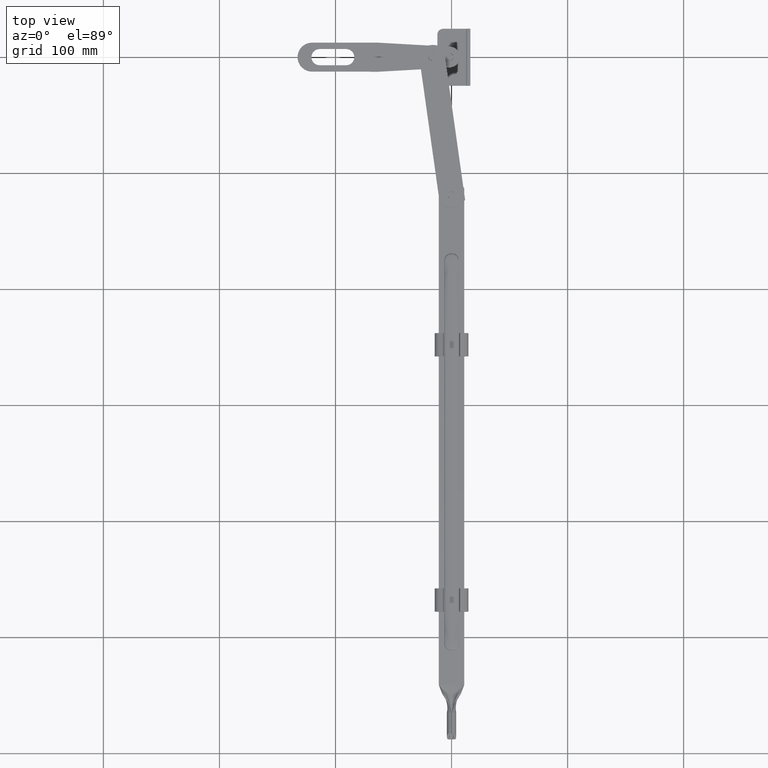
[diagram: clean part render]
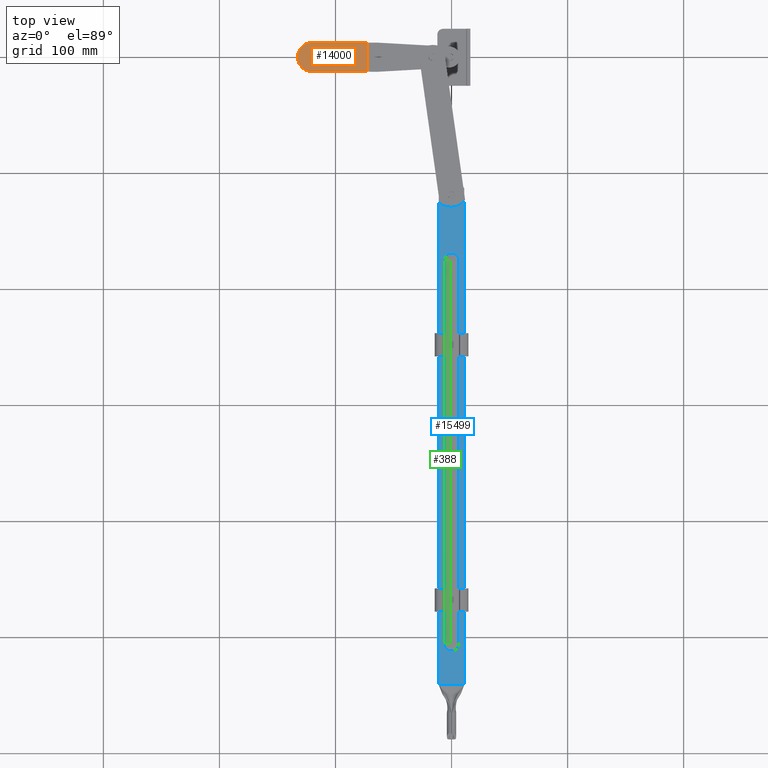
[diagram: same view with three faces highlighted in distinct colors, each labeled with its STEP entity id]
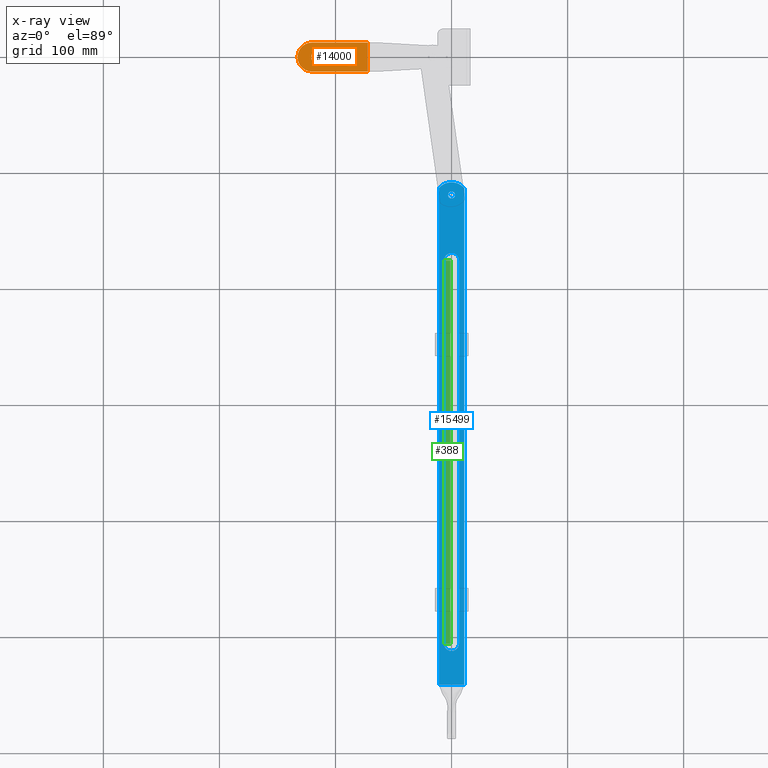
[diagram: x-ray of the same camera — body ghosted, the three highlighted faces saturated]
A machine part, top view with three faces highlighted in distinct colors.
The next image is the same camera in x-ray (body ghosted, the three faces saturated) — at least one of them is partly hidden behind the body in this view.
Their STEP definitions:

[orange] entity #14000 — the highlighted planar face has unit normal (0, -0, -1).
#341 = AXIS2_PLACEMENT_3D ( 'NONE', #13773, #5722, #7228 ) ;
#364 = EDGE_CURVE ( 'NONE', #5129, #12816, #6738, .T. ) ;
#623 = CARTESIAN_POINT ( 'NONE',  ( 0.000000000000000000, -46.00000000000002132, 3.000000000000039080 ) ) ;
#1262 = VECTOR ( 'NONE', #2225, 1000.000000000000000 ) ;
#1793 = EDGE_CURVE ( 'NONE', #6665, #5258, #10393, .T. ) ;
#1829 = CARTESIAN_POINT ( 'NONE',  ( 0.000000000000000000, -52.50000000000001421, 3.000000000000039080 ) ) ;
#1931 = PLANE ( 'NONE',  #341 ) ;
#2004 = AXIS2_PLACEMENT_3D ( 'NONE', #1829, #12192, #14928 ) ;
#2020 = CARTESIAN_POINT ( 'NONE',  ( 6.999999999999999112, -46.00000000000002132, 3.000000000000039080 ) ) ;
#2225 = DIRECTION ( 'NONE',  ( 0.000000000000000000, -1.000000000000000000, 0.000000000000000000 ) ) ;
#2897 = EDGE_CURVE ( 'NONE', #3888, #12816, #9932, .T. ) ;
#2954 = EDGE_CURVE ( 'NONE', #5364, #6775, #14638, .T. ) ;
#3088 = DIRECTION ( 'NONE',  ( 1.000000000000000000, 0.000000000000000000, 0.000000000000000000 ) ) ;
#3140 = DIRECTION ( 'NONE',  ( -0.000000000000000000, 0.000000000000000000, 1.000000000000000000 ) ) ;
#3888 = VERTEX_POINT ( 'NONE', #6821 ) ;
#4095 = DIRECTION ( 'NONE',  ( -0.000000000000000000, 0.000000000000000000, 1.000000000000000000 ) ) ;
#4192 = CARTESIAN_POINT ( 'NONE',  ( 6.999999999999999112, 0.000000000000000000, 3.000000000000039080 ) ) ;
#5129 = VERTEX_POINT ( 'NONE', #15558 ) ;
#5258 = VERTEX_POINT ( 'NONE', #11677 ) ;
#5364 = VERTEX_POINT ( 'NONE', #7881 ) ;
#5722 = DIRECTION ( 'NONE',  ( 0.000000000000000000, 0.000000000000000000, -1.000000000000000000 ) ) ;
#5875 = ORIENTED_EDGE ( 'NONE', *, *, #8628, .F. ) ;
#6029 = ORIENTED_EDGE ( 'NONE', *, *, #2954, .T. ) ;
#6365 = ORIENTED_EDGE ( 'NONE', *, *, #15164, .F. ) ;
#6665 = VERTEX_POINT ( 'NONE', #10875 ) ;
#6738 = LINE ( 'NONE', #4192, #14694 ) ;
#6775 = VERTEX_POINT ( 'NONE', #11373 ) ;
#6821 = CARTESIAN_POINT ( 'NONE',  ( -6.999999999999999112, -46.00000000000002132, 3.000000000000038636 ) ) ;
#6995 = EDGE_CURVE ( 'NONE', #15894, #3888, #13136, .T. ) ;
#7228 = DIRECTION ( 'NONE',  ( -1.000000000000000000, 0.000000000000000000, -0.000000000000000000 ) ) ;
#7286 = DIRECTION ( 'NONE',  ( 0.000000000000000000, -1.000000000000000000, 0.000000000000000000 ) ) ;
#7700 = DIRECTION ( 'NONE',  ( 9.123818196795693986E-17, -1.000000000000000000, 0.000000000000000000 ) ) ;
#7859 = LINE ( 'NONE', #8395, #12934 ) ;
#7881 = CARTESIAN_POINT ( 'NONE',  ( -12.50000000000000533, -52.50000000000001421, 3.000000000000039080 ) ) ;
#8182 = CARTESIAN_POINT ( 'NONE',  ( 0.000000000000000000, -23.00000000000002132, 3.000000000000039080 ) ) ;
#8395 = CARTESIAN_POINT ( 'NONE',  ( -12.50000000000000000, 1.140477274599461835E-15, 3.000000000000039080 ) ) ;
#8505 = DIRECTION ( 'NONE',  ( 9.123818196795693986E-17, 1.000000000000000000, 0.000000000000000000 ) ) ;
#8628 = EDGE_CURVE ( 'NONE', #6665, #6775, #13138, .T. ) ;
#8875 = EDGE_LOOP ( 'NONE', ( #6029, #5875, #14298, #6365 ) ) ;
#9240 = CARTESIAN_POINT ( 'NONE',  ( 15.00000000000000000, -4.539392014169435718, 3.000000000000039080 ) ) ;
#9932 = CIRCLE ( 'NONE', #10503, 6.999999999999999112 ) ;
#10393 = LINE ( 'NONE', #9240, #14673 ) ;
#10503 = AXIS2_PLACEMENT_3D ( 'NONE', #623, #3140, #3088 ) ;
#10875 = CARTESIAN_POINT ( 'NONE',  ( 12.50000000000000000, -4.539392014169435718, 3.000000000000039080 ) ) ;
#11373 = CARTESIAN_POINT ( 'NONE',  ( 12.50000000000000533, -52.50000000000001421, 3.000000000000039080 ) ) ;
#11460 = ORIENTED_EDGE ( 'NONE', *, *, #6995, .F. ) ;
#11536 = FACE_OUTER_BOUND ( 'NONE', #8875, .T. ) ;
#11677 = CARTESIAN_POINT ( 'NONE',  ( -12.50000000000000000, -4.539392014169435718, 3.000000000000039080 ) ) ;
#11956 = DIRECTION ( 'NONE',  ( -1.000000000000000000, -0.000000000000000000, -0.000000000000000000 ) ) ;
#11979 = ORIENTED_EDGE ( 'NONE', *, *, #364, .T. ) ;
#11980 = CARTESIAN_POINT ( 'NONE',  ( -6.999999999999999112, -23.00000000000002132, 3.000000000000039080 ) ) ;
#12192 = DIRECTION ( 'NONE',  ( -0.000000000000000000, 0.000000000000000000, 1.000000000000000000 ) ) ;
#12816 = VERTEX_POINT ( 'NONE', #2020 ) ;
#12934 = VECTOR ( 'NONE', #8505, 1000.000000000000000 ) ;
#13136 = LINE ( 'NONE', #13963, #1262 ) ;
#13138 = LINE ( 'NONE', #14199, #16185 ) ;
#13716 = AXIS2_PLACEMENT_3D ( 'NONE', #8182, #4095, #14614 ) ;
#13738 = CIRCLE ( 'NONE', #13716, 6.999999999999999112 ) ;
#13773 = CARTESIAN_POINT ( 'NONE',  ( 15.00000000000000000, -4.539392014169435718, 3.000000000000039080 ) ) ;
#13963 = CARTESIAN_POINT ( 'NONE',  ( -6.999999999999999112, 0.000000000000000000, 3.000000000000039080 ) ) ;
#14000 = ADVANCED_FACE ( 'NONE', ( #14979, #11536 ), #1931, .F. ) ;
#14199 = CARTESIAN_POINT ( 'NONE',  ( 12.50000000000000000, 1.140477274599461835E-15, 3.000000000000039080 ) ) ;
#14298 = ORIENTED_EDGE ( 'NONE', *, *, #1793, .T. ) ;
#14614 = DIRECTION ( 'NONE',  ( 1.000000000000000000, 0.000000000000000000, 0.000000000000000000 ) ) ;
#14638 = CIRCLE ( 'NONE', #2004, 12.50000000000000533 ) ;
#14673 = VECTOR ( 'NONE', #11956, 1000.000000000000000 ) ;
#14694 = VECTOR ( 'NONE', #7286, 1000.000000000000000 ) ;
#14928 = DIRECTION ( 'NONE',  ( 1.000000000000000000, 0.000000000000000000, 0.000000000000000000 ) ) ;
#14979 = FACE_BOUND ( 'NONE', #15703, .T. ) ;
#15164 = EDGE_CURVE ( 'NONE', #5364, #5258, #7859, .T. ) ;
#15558 = CARTESIAN_POINT ( 'NONE',  ( 6.999999999999999112, -23.00000000000002132, 3.000000000000039080 ) ) ;
#15703 = EDGE_LOOP ( 'NONE', ( #16274, #11460, #15983, #11979 ) ) ;
#15804 = EDGE_CURVE ( 'NONE', #5129, #15894, #13738, .T. ) ;
#15894 = VERTEX_POINT ( 'NONE', #11980 ) ;
#15983 = ORIENTED_EDGE ( 'NONE', *, *, #15804, .F. ) ;
#16185 = VECTOR ( 'NONE', #7700, 1000.000000000000000 ) ;
#16274 = ORIENTED_EDGE ( 'NONE', *, *, #2897, .F. ) ;

[blue] entity #15499 — the highlighted planar face has unit normal (0, 0, -1).
#16 = EDGE_CURVE ( 'NONE', #7216, #2678, #8994, .T. ) ;
#44 = FACE_BOUND ( 'NONE', #7333, .T. ) ;
#94 = AXIS2_PLACEMENT_3D ( 'NONE', #10557, #7009, #8380 ) ;
#125 = CIRCLE ( 'NONE', #7932, 6.500000000000000888 ) ;
#493 = EDGE_CURVE ( 'NONE', #9780, #4061, #11406, .T. ) ;
#698 = PLANE ( 'NONE',  #7068 ) ;
#1053 = VERTEX_POINT ( 'NONE', #14001 ) ;
#1231 = ORIENTED_EDGE ( 'NONE', *, *, #16838, .T. ) ;
#1476 = EDGE_LOOP ( 'NONE', ( #2632, #5634, #16077, #3288 ) ) ;
#1514 = LINE ( 'NONE', #15029, #15000 ) ;
#1591 = EDGE_CURVE ( 'NONE', #14222, #7416, #125, .T. ) ;
#1695 = CIRCLE ( 'NONE', #9207, 6.500000000000000888 ) ;
#1762 = CARTESIAN_POINT ( 'NONE',  ( -6.500000000000060396, 172.5000000000000284, 1.500000000000000444 ) ) ;
#2412 = ORIENTED_EDGE ( 'NONE', *, *, #9785, .F. ) ;
#2437 = EDGE_CURVE ( 'NONE', #7416, #9780, #2569, .T. ) ;
#2569 = LINE ( 'NONE', #6865, #3366 ) ;
#2632 = ORIENTED_EDGE ( 'NONE', *, *, #11256, .F. ) ;
#2678 = VERTEX_POINT ( 'NONE', #9091 ) ;
#2681 = CIRCLE ( 'NONE', #94, 3.000000000000003109 ) ;
#3288 = ORIENTED_EDGE ( 'NONE', *, *, #16, .F. ) ;
#3292 = LINE ( 'NONE', #14445, #11912 ) ;
#3366 = VECTOR ( 'NONE', #12045, 1000.000000000000000 ) ;
#3505 = FACE_BOUND ( 'NONE', #16086, .T. ) ;
#3565 = AXIS2_PLACEMENT_3D ( 'NONE', #8181, #14764, #16132 ) ;
#3646 = DIRECTION ( 'NONE',  ( -0.000000000000000000, -1.000000000000000000, -0.000000000000000000 ) ) ;
#3887 = CARTESIAN_POINT ( 'NONE',  ( -6.750965527343073855E-14, 179.0000000000000568, 1.500000000000000444 ) ) ;
#4061 = VERTEX_POINT ( 'NONE', #3887 ) ;
#4933 = ORIENTED_EDGE ( 'NONE', *, *, #5209, .T. ) ;
#5136 = CIRCLE ( 'NONE', #9486, 6.500000000000000888 ) ;
#5209 = EDGE_CURVE ( 'NONE', #4061, #16782, #1695, .T. ) ;
#5634 = ORIENTED_EDGE ( 'NONE', *, *, #6727, .T. ) ;
#5748 = LINE ( 'NONE', #7337, #10892 ) ;
#5912 = CARTESIAN_POINT ( 'NONE',  ( -11.00000000000000000, 240.0000000000000000, 1.500000000000000444 ) ) ;
#6045 = DIRECTION ( 'NONE',  ( -0.000000000000000000, -1.000000000000000000, -0.000000000000000000 ) ) ;
#6116 = CARTESIAN_POINT ( 'NONE',  ( 11.00000000000000000, 240.0000000000000000, 1.500000000000000444 ) ) ;
#6727 = EDGE_CURVE ( 'NONE', #12640, #8195, #5748, .T. ) ;
#6865 = CARTESIAN_POINT ( 'NONE',  ( -6.500000000000060396, 172.5000000000000284, 1.500000000000000444 ) ) ;
#6866 = CARTESIAN_POINT ( 'NONE',  ( -2.081668171172168513E-14, -157.4999999999999716, 1.500000000000000444 ) ) ;
#7009 = DIRECTION ( 'NONE',  ( 0.000000000000000000, 0.000000000000000000, 1.000000000000000000 ) ) ;
#7068 = AXIS2_PLACEMENT_3D ( 'NONE', #5912, #15005, #11083 ) ;
#7216 = VERTEX_POINT ( 'NONE', #9869 ) ;
#7321 = DIRECTION ( 'NONE',  ( 0.000000000000000000, 0.000000000000000000, -1.000000000000000000 ) ) ;
#7333 = EDGE_LOOP ( 'NONE', ( #13404, #1231, #14922, #10837, #14624, #4933 ) ) ;
#7337 = CARTESIAN_POINT ( 'NONE',  ( -11.00000000000000000, 240.0000000000000000, 1.500000000000000444 ) ) ;
#7416 = VERTEX_POINT ( 'NONE', #15846 ) ;
#7630 = FACE_OUTER_BOUND ( 'NONE', #1476, .T. ) ;
#7861 = DIRECTION ( 'NONE',  ( 0.000000000000000000, -0.000000000000000000, -1.000000000000000000 ) ) ;
#7932 = AXIS2_PLACEMENT_3D ( 'NONE', #6866, #10641, #13360 ) ;
#8106 = CARTESIAN_POINT ( 'NONE',  ( 2.081668171172168513E-14, -163.9999999999999716, 1.500000000000000444 ) ) ;
#8181 = CARTESIAN_POINT ( 'NONE',  ( -6.085227351255483967E-14, 172.5000000000000284, 1.500000000000000444 ) ) ;
#8195 = VERTEX_POINT ( 'NONE', #14089 ) ;
#8234 = EDGE_CURVE ( 'NONE', #16782, #1053, #3292, .T. ) ;
#8380 = DIRECTION ( 'NONE',  ( 1.000000000000000000, 0.000000000000000000, 0.000000000000000000 ) ) ;
#8464 = AXIS2_PLACEMENT_3D ( 'NONE', #13209, #7861, #16936 ) ;
#8747 = CARTESIAN_POINT ( 'NONE',  ( 2.081668171172168513E-14, -157.4999999999999716, 1.500000000000000444 ) ) ;
#8792 = VECTOR ( 'NONE', #3646, 1000.000000000000000 ) ;
#8994 = LINE ( 'NONE', #6116, #8792 ) ;
#9019 = CARTESIAN_POINT ( 'NONE',  ( 2.081668171172168513E-14, 172.5000000000000284, 1.500000000000000444 ) ) ;
#9078 = DIRECTION ( 'NONE',  ( 0.000000000000000000, 0.000000000000000000, -1.000000000000000000 ) ) ;
#9091 = CARTESIAN_POINT ( 'NONE',  ( 10.99999999999999289, -193.0000000000000284, 1.500000000000000222 ) ) ;
#9207 = AXIS2_PLACEMENT_3D ( 'NONE', #9019, #9078, #11564 ) ;
#9486 = AXIS2_PLACEMENT_3D ( 'NONE', #8747, #7321, #11301 ) ;
#9780 = VERTEX_POINT ( 'NONE', #1762 ) ;
#9785 = EDGE_CURVE ( 'NONE', #10050, #10050, #2681, .T. ) ;
#9869 = CARTESIAN_POINT ( 'NONE',  ( 11.00000000000000000, 235.0000000000000000, 1.500000000000000444 ) ) ;
#10050 = VERTEX_POINT ( 'NONE', #13133 ) ;
#10557 = CARTESIAN_POINT ( 'NONE',  ( 0.000000000000000000, 228.9999999999999716, 1.500000000000000444 ) ) ;
#10641 = DIRECTION ( 'NONE',  ( 0.000000000000000000, 0.000000000000000000, -1.000000000000000000 ) ) ;
#10837 = ORIENTED_EDGE ( 'NONE', *, *, #2437, .T. ) ;
#10892 = VECTOR ( 'NONE', #6045, 1000.000000000000000 ) ;
#10974 = CARTESIAN_POINT ( 'NONE',  ( 6.500000000000021316, 172.5000000000000284, 1.500000000000000444 ) ) ;
#11083 = DIRECTION ( 'NONE',  ( -1.000000000000000000, 0.000000000000000000, -0.000000000000000000 ) ) ;
#11256 = EDGE_CURVE ( 'NONE', #12640, #7216, #15743, .T. ) ;
#11301 = DIRECTION ( 'NONE',  ( -1.000000000000000000, 0.000000000000000000, 0.000000000000000000 ) ) ;
#11406 = CIRCLE ( 'NONE', #3565, 6.500000000000000888 ) ;
#11564 = DIRECTION ( 'NONE',  ( -1.000000000000000000, 0.000000000000000000, 0.000000000000000000 ) ) ;
#11912 = VECTOR ( 'NONE', #16910, 1000.000000000000000 ) ;
#12045 = DIRECTION ( 'NONE',  ( -1.217349807703022362E-16, 1.000000000000000000, -0.000000000000000000 ) ) ;
#12247 = DIRECTION ( 'NONE',  ( -1.000000000000000000, 0.000000000000000000, -0.000000000000000000 ) ) ;
#12640 = VERTEX_POINT ( 'NONE', #16001 ) ;
#13133 = CARTESIAN_POINT ( 'NONE',  ( 3.000000000000003109, 228.9999999999999716, 1.500000000000000444 ) ) ;
#13209 = CARTESIAN_POINT ( 'NONE',  ( 0.000000000000000000, 225.3999999999999773, 1.500000000000000444 ) ) ;
#13360 = DIRECTION ( 'NONE',  ( -1.000000000000000000, 0.000000000000000000, 0.000000000000000000 ) ) ;
#13404 = ORIENTED_EDGE ( 'NONE', *, *, #8234, .T. ) ;
#13920 = EDGE_CURVE ( 'NONE', #2678, #8195, #1514, .T. ) ;
#14001 = CARTESIAN_POINT ( 'NONE',  ( 6.500000000000021316, -157.4999999999999716, 1.500000000000000444 ) ) ;
#14089 = CARTESIAN_POINT ( 'NONE',  ( -10.99999999999999289, -193.0000000000000284, 1.500000000000000444 ) ) ;
#14222 = VERTEX_POINT ( 'NONE', #8106 ) ;
#14445 = CARTESIAN_POINT ( 'NONE',  ( 6.500000000000021316, -157.4999999999999716, 1.500000000000000444 ) ) ;
#14624 = ORIENTED_EDGE ( 'NONE', *, *, #493, .T. ) ;
#14764 = DIRECTION ( 'NONE',  ( 0.000000000000000000, 0.000000000000000000, -1.000000000000000000 ) ) ;
#14922 = ORIENTED_EDGE ( 'NONE', *, *, #1591, .T. ) ;
#15000 = VECTOR ( 'NONE', #12247, 1000.000000000000000 ) ;
#15005 = DIRECTION ( 'NONE',  ( 0.000000000000000000, 0.000000000000000000, -1.000000000000000000 ) ) ;
#15029 = CARTESIAN_POINT ( 'NONE',  ( -11.00000000000000000, -193.0000000000000000, 1.500000000000000444 ) ) ;
#15499 = ADVANCED_FACE ( 'NONE', ( #44, #7630, #3505 ), #698, .F. ) ;
#15743 = CIRCLE ( 'NONE', #8464, 14.59999999999999787 ) ;
#15846 = CARTESIAN_POINT ( 'NONE',  ( -6.500000000000021316, -157.4999999999999716, 1.500000000000000444 ) ) ;
#16001 = CARTESIAN_POINT ( 'NONE',  ( -11.00000000000000000, 235.0000000000000000, 1.500000000000000444 ) ) ;
#16077 = ORIENTED_EDGE ( 'NONE', *, *, #13920, .F. ) ;
#16086 = EDGE_LOOP ( 'NONE', ( #2412 ) ) ;
#16132 = DIRECTION ( 'NONE',  ( -1.000000000000000000, 0.000000000000000000, 0.000000000000000000 ) ) ;
#16782 = VERTEX_POINT ( 'NONE', #10974 ) ;
#16838 = EDGE_CURVE ( 'NONE', #1053, #14222, #5136, .T. ) ;
#16910 = DIRECTION ( 'NONE',  ( 0.000000000000000000, -1.000000000000000000, -0.000000000000000000 ) ) ;
#16936 = DIRECTION ( 'NONE',  ( 1.000000000000000000, 0.000000000000000000, 0.000000000000000000 ) ) ;

[green] entity #388 — the highlighted face is a freeform B-spline surface patch.
#227 = ORIENTED_EDGE ( 'NONE', *, *, #15152, .F. ) ;
#388 = ADVANCED_FACE ( 'NONE', ( #754 ), #11341, .T. ) ;
#683 = EDGE_CURVE ( 'NONE', #6081, #1372, #6913, .T. ) ;
#754 = FACE_OUTER_BOUND ( 'NONE', #1787, .T. ) ;
#901 = CARTESIAN_POINT ( 'NONE',  ( -1.000000000000034195, -47.49999999999995737, 2.500000000000000444 ) ) ;
#1185 = CARTESIAN_POINT ( 'NONE',  ( -6.000000000000060396, 172.5000000000000284, 2.000000000000000444 ) ) ;
#1278 =( BOUNDED_CURVE ( )  B_SPLINE_CURVE ( 2, ( #5797, #3056, #4381 ),
 .UNSPECIFIED., .F., .F. ) 
 B_SPLINE_CURVE_WITH_KNOTS ( ( 3, 3 ),
 ( 0.000000000000000000, 1.000000000000000000 ),
 .UNSPECIFIED. ) 
 CURVE ( )  GEOMETRIC_REPRESENTATION_ITEM ( )  RATIONAL_B_SPLINE_CURVE ( ( 1.000000000000000000, 0.7071067811865475727, 1.000000000000000000 ) ) 
 REPRESENTATION_ITEM ( '' )  );
#1293 = CARTESIAN_POINT ( 'NONE',  ( -6.000000000000047962, 62.50000000000002842, 2.000000000000000444 ) ) ;
#1372 = VERTEX_POINT ( 'NONE', #6275 ) ;
#1438 = CARTESIAN_POINT ( 'NONE',  ( -6.000000000000021316, -157.4999999999999716, 2.000000000000000444 ) ) ;
#1787 = EDGE_LOOP ( 'NONE', ( #14256, #9610, #227, #9542 ) ) ;
#2421 = CARTESIAN_POINT ( 'NONE',  ( -1.000000000000061062, 172.5000000000000568, 2.500000000000000444 ) ) ;
#2539 = CARTESIAN_POINT ( 'NONE',  ( -6.000000000000060396, 62.50000000000002842, 2.500000000000000444 ) ) ;
#2737 = CARTESIAN_POINT ( 'NONE',  ( -6.000000000000021316, -157.4999999999999716, 2.000000000000000444 ) ) ;
#3039 =( BOUNDED_CURVE ( )  B_SPLINE_CURVE ( 2, ( #16192, #7076, #12411 ),
 .UNSPECIFIED., .F., .F. ) 
 B_SPLINE_CURVE_WITH_KNOTS ( ( 3, 3 ),
 ( 0.000000000000000000, 1.000000000000000000 ),
 .UNSPECIFIED. ) 
 CURVE ( )  GEOMETRIC_REPRESENTATION_ITEM ( )  RATIONAL_B_SPLINE_CURVE ( ( 1.000000000000000000, 0.7071067811865475727, 1.000000000000000000 ) ) 
 REPRESENTATION_ITEM ( '' )  );
#3056 = CARTESIAN_POINT ( 'NONE',  ( -6.000000000000060396, 172.5000000000000568, 2.500000000000000444 ) ) ;
#3800 = CARTESIAN_POINT ( 'NONE',  ( -6.000000000000033751, -47.49999999999994316, 2.000000000000000444 ) ) ;
#4381 = CARTESIAN_POINT ( 'NONE',  ( -1.000000000000061062, 172.5000000000000568, 2.500000000000000444 ) ) ;
#5178 = CARTESIAN_POINT ( 'NONE',  ( -1.000000000000061062, 172.5000000000000568, 2.500000000000000444 ) ) ;
#5457 = VERTEX_POINT ( 'NONE', #9630 ) ;
#5797 = CARTESIAN_POINT ( 'NONE',  ( -6.000000000000060396, 172.5000000000000284, 2.000000000000000444 ) ) ;
#6081 = VERTEX_POINT ( 'NONE', #5178 ) ;
#6242 = CARTESIAN_POINT ( 'NONE',  ( -1.000000000000061062, 172.5000000000000568, 2.500000000000000444 ) ) ;
#6261 = CARTESIAN_POINT ( 'NONE',  ( -1.000000000000020872, -157.4999999999999716, 2.500000000000000444 ) ) ;
#6275 = CARTESIAN_POINT ( 'NONE',  ( -1.000000000000020872, -157.4999999999999716, 2.500000000000000444 ) ) ;
#6449 = CARTESIAN_POINT ( 'NONE',  ( -6.000000000000021316, -157.4999999999999716, 2.500000000000000444 ) ) ;
#6600 = CARTESIAN_POINT ( 'NONE',  ( -6.000000000000047962, 62.50000000000002842, 2.000000000000000444 ) ) ;
#6913 = B_SPLINE_CURVE_WITH_KNOTS ( 'NONE', 3,
 ( #6242, #10199, #901, #16522 ),
 .UNSPECIFIED., .F., .F.,
 ( 4, 4 ),
 ( 0.000000000000000000, 1.000000000000000000 ),
 .UNSPECIFIED. ) ;
#7076 = CARTESIAN_POINT ( 'NONE',  ( -6.000000000000021316, -157.4999999999999716, 2.500000000000000444 ) ) ;
#7657 = CARTESIAN_POINT ( 'NONE',  ( -1.000000000000020872, -47.49999999999994316, 2.500000000000000444 ) ) ;
#7868 = EDGE_CURVE ( 'NONE', #5457, #6081, #1278, .T. ) ;
#9098 = CARTESIAN_POINT ( 'NONE',  ( -6.000000000000060396, 172.5000000000000568, 2.000000000000000444 ) ) ;
#9156 = CARTESIAN_POINT ( 'NONE',  ( -6.000000000000021316, -157.4999999999999716, 2.000000000000000444 ) ) ;
#9542 = ORIENTED_EDGE ( 'NONE', *, *, #683, .F. ) ;
#9610 = ORIENTED_EDGE ( 'NONE', *, *, #11339, .T. ) ;
#9630 = CARTESIAN_POINT ( 'NONE',  ( -6.000000000000060396, 172.5000000000000284, 2.000000000000000444 ) ) ;
#10199 = CARTESIAN_POINT ( 'NONE',  ( -1.000000000000047518, 62.50000000000005684, 2.500000000000000444 ) ) ;
#11339 = EDGE_CURVE ( 'NONE', #5457, #14273, #13158, .T. ) ;
#11341 =( BOUNDED_SURFACE ( )  B_SPLINE_SURFACE ( 2, 3, ( 
 ( #9156, #3800, #1293, #9098 ),
 ( #6449, #13001, #2539, #14210 ),
 ( #6261, #7657, #16852, #2421 ) ),
 .UNSPECIFIED., .F., .F., .F. ) 
 B_SPLINE_SURFACE_WITH_KNOTS ( ( 3, 3 ),
 ( 4, 4 ),
 ( 0.000000000000000000, 1.000000000000000000 ),
 ( -0.1574999999999999734, 0.1725000000000000422 ),
 .UNSPECIFIED. ) 
 GEOMETRIC_REPRESENTATION_ITEM ( )  RATIONAL_B_SPLINE_SURFACE ( (
 ( 1.000000000000000000, 1.000000000000000000, 1.000000000000000000, 1.000000000000000000),
 ( 0.7071067811865475727, 0.7071067811865475727, 0.7071067811865475727, 0.7071067811865475727),
 ( 1.000000000000000000, 1.000000000000000000, 1.000000000000000000, 1.000000000000000000) ) ) 
 REPRESENTATION_ITEM ( '' )  SURFACE ( )  );
#12411 = CARTESIAN_POINT ( 'NONE',  ( -6.000000000000021316, -157.4999999999999716, 2.000000000000000444 ) ) ;
#13001 = CARTESIAN_POINT ( 'NONE',  ( -6.000000000572479841, -47.49999999999995026, 2.500000000000000444 ) ) ;
#13158 = B_SPLINE_CURVE_WITH_KNOTS ( 'NONE', 3,
 ( #1185, #6600, #14288, #2737 ),
 .UNSPECIFIED., .F., .F.,
 ( 4, 4 ),
 ( 0.000000000000000000, 1.000000000000000000 ),
 .UNSPECIFIED. ) ;
#14210 = CARTESIAN_POINT ( 'NONE',  ( -6.000000000000060396, 172.5000000000000568, 2.500000000000000444 ) ) ;
#14256 = ORIENTED_EDGE ( 'NONE', *, *, #7868, .F. ) ;
#14273 = VERTEX_POINT ( 'NONE', #1438 ) ;
#14288 = CARTESIAN_POINT ( 'NONE',  ( -6.000000000000033751, -47.49999999999994316, 2.000000000000000444 ) ) ;
#15152 = EDGE_CURVE ( 'NONE', #1372, #14273, #3039, .T. ) ;
#16192 = CARTESIAN_POINT ( 'NONE',  ( -1.000000000000020872, -157.4999999999999716, 2.500000000000000444 ) ) ;
#16522 = CARTESIAN_POINT ( 'NONE',  ( -1.000000000000020872, -157.4999999999999716, 2.500000000000000444 ) ) ;
#16852 = CARTESIAN_POINT ( 'NONE',  ( -1.000000000000061062, 62.50000000000002842, 2.500000000000000444 ) ) ;